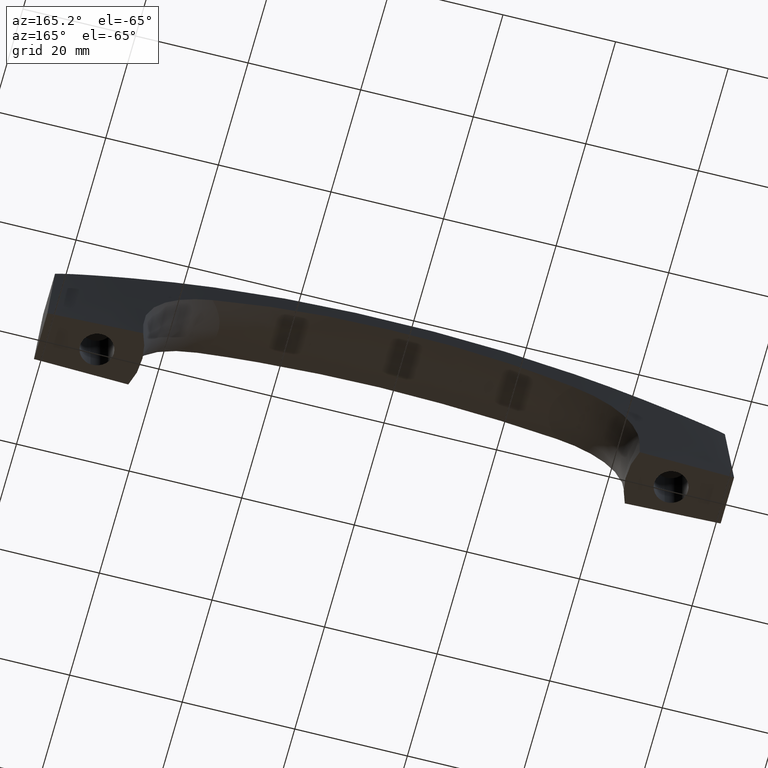
[diagram: clean part render]
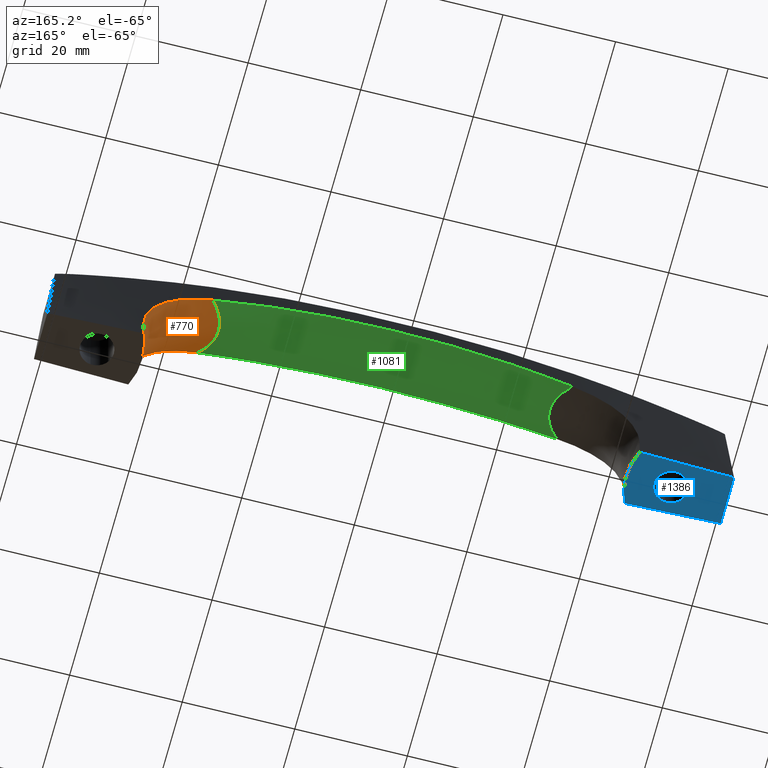
[diagram: same view with three faces highlighted in distinct colors, each labeled with its STEP entity id]
A machine part, auxiliary view with three faces highlighted in distinct colors.
Their STEP definitions:

[orange] entity #770 — the highlighted face is a freeform B-spline surface patch.
#523=CARTESIAN_POINT('',(44.082250863787102,4.979584519048630,3.605350041675625));
#524=VERTEX_POINT('',#523);
#549=CARTESIAN_POINT('',(44.082879863556499,-4.979579647296540,3.603921780029675));
#550=VERTEX_POINT('',#549);
#558=CARTESIAN_POINT('',(44.082250863787102,4.979584519048630,3.605350041675625));
#559=CARTESIAN_POINT('',(44.061805541953468,4.934754980369749,3.572103161481472));
#560=CARTESIAN_POINT('',(44.041557719643492,4.889628672710915,3.539211358963760));
#561=CARTESIAN_POINT('',(43.814513336354047,4.375093358441645,3.170753038720376));
#562=CARTESIAN_POINT('',(43.628145494150367,3.869373818832388,2.871423095946262));
#563=CARTESIAN_POINT('',(43.172047555760876,2.298523049232081,2.148393828792288));
#564=CARTESIAN_POINT('',(43.003163163210182,1.175548169044361,1.894745840074199));
#565=CARTESIAN_POINT('',(42.998749687705697,-0.541893558222515,1.886695942256058));
#566=CARTESIAN_POINT('',(43.039393928722063,-1.122935938427230,1.947433257691355));
#567=CARTESIAN_POINT('',(43.198337025025189,-2.244635786605662,2.192246502187220));
#568=CARTESIAN_POINT('',(43.316006466822273,-2.788608503984232,2.375161768322997));
#569=CARTESIAN_POINT('',(43.633858211869757,-3.896059069223268,2.877745528504867));
#570=CARTESIAN_POINT('',(43.844006431972772,-4.455527119921518,3.214909279984090));
#571=CARTESIAN_POINT('',(44.082879863556499,-4.979579647296540,3.603921780029675));
#572=B_SPLINE_CURVE_WITH_KNOTS('',3,(#558,#559,#560,#561,#562,#563,#564,#565,#566,#567,#568,#569,#570,#571),.UNSPECIFIED.,.F.,.U.,(4,2,2,2,2,2,4),(0.007838878932541,0.007965946512911,0.009278175349758,0.011902633023452,0.013214861860299,0.014527090697146,0.015998461930642),.UNSPECIFIED.);
#573=EDGE_CURVE('',#524,#550,#572,.T.);
#578=CARTESIAN_POINT('',(45.080294106020588,6.752444310311134,5.134577590753950));
#579=CARTESIAN_POINT('',(45.070049700699457,6.737325087688528,5.177985632299731));
#580=CARTESIAN_POINT('',(42.689084896246413,3.223374223128531,15.266713665880658));
#581=CARTESIAN_POINT('',(33.648056535514471,6.737355394336897,20.341077216990222));
#582=CARTESIAN_POINT('',(33.609078922992460,6.752504843164640,20.362953774434754));
#583=CARTESIAN_POINT('',(44.956754143887970,6.570901175632478,4.926810901028103));
#584=CARTESIAN_POINT('',(44.946885867718812,6.555743561799802,4.970847555976422));
#585=CARTESIAN_POINT('',(42.642876779094841,3.016799228091930,15.252364965321513));
#586=CARTESIAN_POINT('',(33.385628095525313,6.555773946000112,20.288232555321287));
#587=CARTESIAN_POINT('',(33.345899553369676,6.570961861013964,20.309844557405079));
#588=CARTESIAN_POINT('',(44.836221595036456,6.383056194430378,4.725426405553452));
#589=CARTESIAN_POINT('',(44.826757819236590,6.367909003125281,4.770088495405320));
#590=CARTESIAN_POINT('',(42.607010864946311,2.815105927853508,15.245668223530979));
#591=CARTESIAN_POINT('',(33.130693077362082,6.367939367046693,20.235677428537226));
#592=CARTESIAN_POINT('',(33.090210873471008,6.383116836914239,20.256994418383204));
#593=CARTESIAN_POINT('',(44.473508681901670,5.780533417708178,4.123917735728925));
#594=CARTESIAN_POINT('',(44.465366685290313,5.765571454258140,4.170477266344490));
#595=CARTESIAN_POINT('',(42.527998415200628,2.205408679699893,15.249204216316175));
#596=CARTESIAN_POINT('',(32.367555061608627,5.765601448827734,20.074476401256028));
#597=CARTESIAN_POINT('',(32.324769735610658,5.780593315121526,20.094795479496696));
#598=CARTESIAN_POINT('',(44.242837747070247,5.342552049505785,3.746801991625277));
#599=CARTESIAN_POINT('',(44.235692968658356,5.327978716259035,3.794614292987360));
#600=CARTESIAN_POINT('',(42.518800412177349,1.826002037360240,15.283925729117994));
#601=CARTESIAN_POINT('',(31.886911911010984,5.328007932744717,19.967979304592518));
#602=CARTESIAN_POINT('',(31.842579695030686,5.342610388526801,19.987510592448686));
#603=CARTESIAN_POINT('',(43.824778134463294,4.401508337474752,3.070260974938749));
#604=CARTESIAN_POINT('',(43.819670443707913,4.388343948089008,3.120408129333154));
#605=CARTESIAN_POINT('',(42.568806032029570,1.164408323794642,15.401357345572350));
#606=CARTESIAN_POINT('',(31.022045628286513,4.388370342157891,19.769921529466373));
#607=CARTESIAN_POINT('',(30.974802596749186,4.401561032358701,19.787795306031949));
#608=CARTESIAN_POINT('',(43.636322024748488,3.893730465923430,2.768730211596710));
#609=CARTESIAN_POINT('',(43.632262223080851,3.881593175302522,2.819974522333848));
#610=CARTESIAN_POINT('',(42.628879115708841,0.881852455116946,15.485045368642902));
#611=CARTESIAN_POINT('',(30.635186014975332,3.881617510828556,19.677946335019293));
#612=CARTESIAN_POINT('',(30.586561627317643,3.893779047540044,19.694945039278853));
#613=CARTESIAN_POINT('',(43.174776266542054,2.314923449765486,2.040305799656462));
#614=CARTESIAN_POINT('',(43.173452052125739,2.306756390450942,2.094238962909838));
#615=CARTESIAN_POINT('',(42.838387876049914,0.240256459308241,15.740874043779161));
#616=CARTESIAN_POINT('',(29.698035550179835,2.306772767291519,19.447584968716328));
#617=CARTESIAN_POINT('',(29.645999977010302,2.314956136951894,19.462263481344436));
#618=CARTESIAN_POINT('',(43.003303239706170,1.184000520232820,1.784444589659977));
#619=CARTESIAN_POINT('',(43.003282080533815,1.179800046202783,1.839480281311706));
#620=CARTESIAN_POINT('',(42.997875471037446,0.106491392967733,15.902246451079192));
#621=CARTESIAN_POINT('',(29.365455047997749,1.179808469375395,19.355020329536394));
#622=CARTESIAN_POINT('',(29.311997430904686,1.184017331155586,19.368559896111922));
#623=CARTESIAN_POINT('',(42.998857831707944,-0.545737254486875,1.776325831967125));
#624=CARTESIAN_POINT('',(42.998867989871442,-0.543801638653960,1.831394573308226));
#625=CARTESIAN_POINT('',(43.001464272081328,-0.049085743046121,15.906182157336332));
#626=CARTESIAN_POINT('',(29.355155252572978,-0.543805520130713,19.353066703407727));
#627=CARTESIAN_POINT('',(29.301656771416326,-0.545745001102040,19.366579741085072));
#628=CARTESIAN_POINT('',(43.040110239124317,-1.130955790101828,1.837569237739479));
#629=CARTESIAN_POINT('',(43.039821830840530,-1.126936107395765,1.892385262209954));
#630=CARTESIAN_POINT('',(42.966279867934993,-0.101946975389102,15.870062967292180));
#631=CARTESIAN_POINT('',(29.434752030968195,-1.126944167985624,19.375290237335726));
#632=CARTESIAN_POINT('',(29.381580114530166,-1.130971877622747,19.389063970335023));
#633=CARTESIAN_POINT('',(43.201257074791741,-2.260089782233837,2.084338172562199));
#634=CARTESIAN_POINT('',(43.199877936318551,-2.252360209182155,2.138178393424138));
#635=CARTESIAN_POINT('',(42.851289299630672,-0.298646797091987,15.746738776321921));
#636=CARTESIAN_POINT('',(29.753989077762053,-2.252375708546218,19.459285834881264));
#637=CARTESIAN_POINT('',(29.702068507203222,-2.260120718439987,19.474003185651405));
#638=CARTESIAN_POINT('',(43.320520579815948,-2.807360628640942,2.268710204733941));
#639=CARTESIAN_POINT('',(43.318350026800324,-2.797985148824797,2.321823714649160));
#640=CARTESIAN_POINT('',(42.773221675744814,-0.443359477031166,15.661133959879635));
#641=CARTESIAN_POINT('',(29.992151604044079,-2.798003948182839,19.520761034229242));
#642=CARTESIAN_POINT('',(29.941159619583761,-2.807398153332244,19.536159591837762));
#643=CARTESIAN_POINT('',(43.775570233507175,-4.381683786826828,2.984912825330219));
#644=CARTESIAN_POINT('',(43.770650913637951,-4.368256487250542,3.035318932286654));
#645=CARTESIAN_POINT('',(42.563313986358594,-1.072826419074647,15.406369383658740));
#646=CARTESIAN_POINT('',(30.913874078946890,-4.368283408456470,19.748568750961407));
#647=CARTESIAN_POINT('',(30.866313749517911,-4.381737533399789,19.766296335634710));
#648=CARTESIAN_POINT('',(44.213901248004319,-5.346108190979845,3.691308788807143));
#649=CARTESIAN_POINT('',(44.206695101421758,-5.331315996259572,3.739195170055001));
#650=CARTESIAN_POINT('',(42.473991597033809,-1.774562419882943,15.253379574999498));
#651=CARTESIAN_POINT('',(31.818899900070630,-5.331345651880263,19.959616362052348));
#652=CARTESIAN_POINT('',(31.774498219720194,-5.346167406270965,19.979228095805098));
#653=CARTESIAN_POINT('',(44.829211345203667,-6.372073191735798,4.713020382093528));
#654=CARTESIAN_POINT('',(44.819773912272694,-6.356952464648384,4.757721192328099));
#655=CARTESIAN_POINT('',(42.605608009084875,-2.809398951611429,15.245213987249617));
#656=CARTESIAN_POINT('',(33.115097725676456,-6.356982775552329,20.232840966485369));
#657=CARTESIAN_POINT('',(33.074565837209740,-6.372133728197066,20.254142027692733));
#658=CARTESIAN_POINT('',(44.952890932220001,-6.565168085959815,4.919918281183925));
#659=CARTESIAN_POINT('',(44.943036993646771,-6.550029312336834,4.963976080527908));
#660=CARTESIAN_POINT('',(42.642042258883784,-3.014971919959586,15.251919684257906));
#661=CARTESIAN_POINT('',(33.376980753826686,-6.550059658787335,20.286702680436647));
#662=CARTESIAN_POINT('',(33.337224438864418,-6.565228695872246,20.308306899518598));
#663=CARTESIAN_POINT('',(45.079608601337156,-6.751437873785444,5.133274941342227));
#664=CARTESIAN_POINT('',(45.069368506821114,-6.736333826332615,5.176687157947462));
#665=CARTESIAN_POINT('',(42.689342294090750,-3.225816535722429,15.266653936213762));
#666=CARTESIAN_POINT('',(33.646430143316408,-6.736364102564008,20.340828803993695));
#667=CARTESIAN_POINT('',(33.607445446453376,-6.751498345873545,20.362703966082222));
#675=(BOUNDED_SURFACE()B_SPLINE_SURFACE(2,3,((#578,#583,#588,#593,#598,#603,#608,#613,#618,#623,#628,#633,#638,#643,#648,#653,#658,#663),(#579,#584,#589,#594,#599,#604,#609,#614,#619,#624,#629,#634,#639,#644,#649,#654,#659,#664),(#580,#585,#590,#595,#600,#605,#610,#615,#620,#625,#630,#635,#640,#645,#650,#655,#660,#665),(#581,#586,#591,#596,#601,#606,#611,#616,#621,#626,#631,#636,#641,#646,#651,#656,#661,#666),(#582,#587,#592,#597,#602,#607,#612,#617,#622,#627,#632,#637,#642,#647,#652,#657,#662,#667)),.UNSPECIFIED.,.F.,.F.,.U.)B_SPLINE_SURFACE_WITH_KNOTS((3,1,1,3),(4,2,2,2,2,2,2,2,4),(0.0,0.123362028490618,24.823048897400160,24.946658043230858),(0.0,0.976460286446232,3.027858903366601,5.079257520286970,9.182054754127709,11.233453371048080,13.284851987968450,17.387649221809170,18.381773931342121),.UNSPECIFIED.)GEOMETRIC_REPRESENTATION_ITEM()RATIONAL_B_SPLINE_SURFACE(((1.001329225078286,1.001368214203108,1.001407410601209,1.001528847603208,1.001610992594413,1.001767006329892,1.001841337008536,1.002029115071149,1.002106144662457,1.002108132125392,1.002089940801202,1.002020667296859,1.001969958792039,1.001784596914728,1.001616095345756,1.001409707533222,1.001369451653613,1.001329453452548),(1.000664612539143,1.000684107101554,1.000703705300604,1.000764423801604,1.000805496297206,1.000883503164946,1.000920668504268,1.001014557535574,1.001053072331229,1.001054066062696,1.001044970400601,1.001010333648429,1.000984979396020,1.000892298457364,1.000808047672878,1.000704853766611,1.000684725826807,1.000664726726274),(0.866930514949930,0.863027291299277,0.859103317401757,0.846946189473549,0.838722607284495,0.823103982733893,0.815662695857696,0.796864126297302,0.789152649726133,0.788953683671702,0.790774827571123,0.797709837827252,0.802786295331886,0.821342979195785,0.838211767920503,0.858873370220389,0.862903409419350,0.866907652271515),(1.000665943883033,1.000685477496718,1.000705114954646,1.000765955086221,1.000807109857755,1.000885272987920,1.000922512776405,1.001016589885096,1.001055181833128,1.001056177555226,1.001047063672810,1.001012357536711,1.000986952494965,1.000894085898962,1.000809666344312,1.000706265721246,1.000686097461394,1.000666058298902),(1.001331887766065,1.001370954993436,1.001410229909293,1.001531910172442,1.001614219715511,1.001770545975839,1.001845025552810,1.002033179770191,1.002110363666256,1.002112355110452,1.002094127345620,1.002024715073421,1.001973904989931,1.001788171797924,1.001619332688625,1.001412531442492,1.001372194922787,1.001332116597804)))REPRESENTATION_ITEM('')SURFACE());
#676=ORIENTED_EDGE('',*,*,#573,.T.);
#677=CARTESIAN_POINT('',(31.802017009434401,-5.160834543177030,19.919319875869650));
#678=VERTEX_POINT('',#677);
#679=CARTESIAN_POINT('',(31.802017009434401,-5.160834543177030,19.919319875869650));
#680=CARTESIAN_POINT('',(32.691539851712342,-5.141563303627655,19.667296589518589));
#681=CARTESIAN_POINT('',(33.552061479474489,-5.122936460799529,19.354723559195481));
#682=CARTESIAN_POINT('',(34.798723480071423,-5.095994306989473,18.793657488653700));
#683=CARTESIAN_POINT('',(35.206902775466972,-5.087185454150149,18.591178249858700));
#684=CARTESIAN_POINT('',(36.007864644051317,-5.069965167658074,18.154071476555000));
#685=CARTESIAN_POINT('',(36.400650359213117,-5.061554005675075,17.919450486631892));
#686=CARTESIAN_POINT('',(36.977540532800788,-5.049285566978782,17.541859475034080));
#687=CARTESIAN_POINT('',(37.167785739487613,-5.045254220951280,17.411712010661631));
#688=CARTESIAN_POINT('',(37.449951509929782,-5.039301229410651,17.209804457082321));
#689=CARTESIAN_POINT('',(37.543429090555279,-5.037333512795889,17.141413454365338));
#690=CARTESIAN_POINT('',(37.728319000058178,-5.033450985088471,17.003106248660451));
#691=CARTESIAN_POINT('',(37.819853848824792,-5.031533586167400,16.933103315160551));
#692=CARTESIAN_POINT('',(38.272982866651319,-5.022066877914060,16.578846924034870));
#693=CARTESIAN_POINT('',(38.620954954208557,-5.014878282334703,16.281880980233989));
#694=CARTESIAN_POINT('',(39.621128440782812,-4.994506073388788,15.350160590472640));
#695=CARTESIAN_POINT('',(40.229639616246239,-4.982422400602411,14.674634315657340));
#696=CARTESIAN_POINT('',(41.052263548453837,-4.967291659650552,13.577210124065820));
#697=CARTESIAN_POINT('',(41.311434995790812,-4.962773213474763,13.197367252574949));
#698=CARTESIAN_POINT('',(41.798938612787673,-4.954981217493461,12.408893653299209));
#699=CARTESIAN_POINT('',(42.023339237843039,-4.951770835192053,12.006642455043311));
#700=CARTESIAN_POINT('',(42.641939488034012,-4.944249474085741,10.777314663303921));
#701=CARTESIAN_POINT('',(42.981864554477333,-4.942049734815915,9.927780685954243));
#702=CARTESIAN_POINT('',(43.323172687693187,-4.942869811698580,8.831278665279188));
#703=CARTESIAN_POINT('',(43.387228154627593,-4.943212156062575,8.610238177892938));
#704=CARTESIAN_POINT('',(43.506990655257830,-4.944254888572649,8.164703454420714));
#705=CARTESIAN_POINT('',(43.562779484670848,-4.944957046415500,7.939820224847321));
#706=CARTESIAN_POINT('',(43.716808943542482,-4.947586659932695,7.263875905623732));
#707=CARTESIAN_POINT('',(43.801924278721458,-4.950034885818505,6.811122657174763));
#708=CARTESIAN_POINT('',(44.007083324495383,-4.959369581489566,5.446839329922986));
#709=CARTESIAN_POINT('',(44.077307010174707,-4.968241734188141,4.529287907441254));
#710=CARTESIAN_POINT('',(44.082879863556499,-4.979579647296540,3.603921780029675));
#711=B_SPLINE_CURVE_WITH_KNOTS('',3,(#679,#680,#681,#682,#683,#684,#685,#686,#687,#688,#689,#690,#691,#692,#693,#694,#695,#696,#697,#698,#699,#700,#701,#702,#703,#704,#705,#706,#707,#708,#709,#710),.UNSPECIFIED.,.F.,.U.,(4,2,2,2,2,2,2,2,2,2,2,2,2,2,2,4),(0.000010611798683,0.124999999999999,0.187499999999999,0.250000000000000,0.281250000000000,0.296874999999999,0.312499999999999,0.374999999999999,0.500000000000000,0.562500000000000,0.625000000000000,0.750000000000000,0.781250000000000,0.812500000000000,0.875000000000000,0.999994305615757),.UNSPECIFIED.);
#712=EDGE_CURVE('',#678,#550,#711,.T.);
#713=ORIENTED_EDGE('',*,*,#712,.F.);
#714=CARTESIAN_POINT('',(31.803280635618300,5.160807104095160,19.918591792573899));
#715=VERTEX_POINT('',#714);
#716=CARTESIAN_POINT('',(31.802017009434401,-5.160834543177030,19.919319875869650));
#717=CARTESIAN_POINT('',(31.544508817987669,-4.901500882649113,19.861307578703041));
#718=CARTESIAN_POINT('',(30.923088351541612,-4.210686773737158,19.717622094367272));
#719=CARTESIAN_POINT('',(30.116905773373659,-2.999274076952050,19.520848045497718));
#720=CARTESIAN_POINT('',(29.541290944065729,-1.514774810855222,19.374282202826080));
#721=CARTESIAN_POINT('',(29.348528958815368,0.000610195379206,19.324010073250960));
#722=CARTESIAN_POINT('',(29.543432987319640,1.515914695845538,19.373757568973758));
#723=CARTESIAN_POINT('',(30.119720263575331,3.000685804611912,19.520282631177651));
#724=CARTESIAN_POINT('',(30.925697905249940,4.211627782066718,19.717024599959149));
#725=CARTESIAN_POINT('',(31.546325443138080,4.901908171230543,19.860666952074670));
#726=CARTESIAN_POINT('',(31.803280635618300,5.160807104095160,19.918591792573899));
#727=B_SPLINE_CURVE_WITH_KNOTS('',3,(#716,#717,#718,#719,#720,#721,#722,#723,#724,#725,#726),.UNSPECIFIED.,.F.,.U.,(4,1,1,1,1,1,1,1,4),(0.293232866177284,0.332352932474829,0.392498532906652,0.447638232598638,0.500046093444396,0.552502353411976,0.607667971942981,0.667804671063672,0.706851880898741),.UNSPECIFIED.);
#728=EDGE_CURVE('',#678,#715,#727,.T.);
#729=ORIENTED_EDGE('',*,*,#728,.T.);
#730=CARTESIAN_POINT('',(44.082250863787102,4.979584519048630,3.605350041675625));
#731=CARTESIAN_POINT('',(44.076956136583561,4.968247000714896,4.529910529425358));
#732=CARTESIAN_POINT('',(44.007331977542329,4.959408988374667,5.443002201723352));
#733=CARTESIAN_POINT('',(43.805695970149387,4.950091536803920,6.795337720618992));
#734=CARTESIAN_POINT('',(43.722183507703640,4.947643733685406,7.243227677287054));
#735=CARTESIAN_POINT('',(43.521267447603897,4.944113636639386,8.132965673360268));
#736=CARTESIAN_POINT('',(43.403866522215147,4.943031418885463,8.574814190222469));
#737=CARTESIAN_POINT('',(43.200749320316717,4.942477044523661,9.232770628349948));
#738=CARTESIAN_POINT('',(43.128529038276092,4.942470682526870,9.451284593309547));
#739=CARTESIAN_POINT('',(42.974767407126023,4.942820614412618,9.886650742394291));
#740=CARTESIAN_POINT('',(42.893084267872560,4.943178760885633,10.103777831251341));
#741=CARTESIAN_POINT('',(42.636188150191089,4.944788833756206,10.745972959732610));
#742=CARTESIAN_POINT('',(42.448462725798088,4.946576347671961,11.163950007605660));
#743=CARTESIAN_POINT('',(41.835562028518652,4.953972551166575,12.387213269093181));
#744=CARTESIAN_POINT('',(41.360813408169079,4.961633142751754,13.161924545840810));
#745=CARTESIAN_POINT('',(40.544753458475491,4.976577922340746,14.259895167905119));
#746=CARTESIAN_POINT('',(40.255371310471062,4.982131506709964,14.615178453878240));
#747=CARTESIAN_POINT('',(39.794292721161341,4.991183619009651,15.131451276980240));
#748=CARTESIAN_POINT('',(39.635675085390488,4.994330353737659,15.301172847173531));
#749=CARTESIAN_POINT('',(39.312524354333647,5.000800832937718,15.631709399011600));
#750=CARTESIAN_POINT('',(39.147779348805628,5.004128581592381,15.792803621766231));
#751=CARTESIAN_POINT('',(38.308651043559713,5.021209609160410,16.577990581863450));
#752=CARTESIAN_POINT('',(37.588301452235427,5.036286511420092,17.141551467323129));
#753=CARTESIAN_POINT('',(36.439913698738323,5.060700697399872,17.897529512785820));
#754=CARTESIAN_POINT('',(36.045748018006613,5.069139392548497,18.134550376915520));
#755=CARTESIAN_POINT('',(35.538968321746509,5.080034969289716,18.412296207743630));
#756=CARTESIAN_POINT('',(35.436826900560263,5.082233187308512,18.466960019591252));
#757=CARTESIAN_POINT('',(35.231791287770228,5.086649511664565,18.574099401353418));
#758=CARTESIAN_POINT('',(34.922958118756682,5.093307073594882,18.731614163364220));
#759=CARTESIAN_POINT('',(34.610346522083297,5.100059236389988,18.879697972079612));
#760=CARTESIAN_POINT('',(33.980217505368437,5.113679345061160,19.163621037168241));
#761=CARTESIAN_POINT('',(33.553599979911318,5.122912600558392,19.336600982693142));
#762=CARTESIAN_POINT('',(32.687820854089523,5.141652261266620,19.651090195621510));
#763=CARTESIAN_POINT('',(32.248660416214271,5.151158047474998,19.792602396418790));
#764=CARTESIAN_POINT('',(31.803280635618300,5.160807104095160,19.918591792573899));
#765=B_SPLINE_CURVE_WITH_KNOTS('',3,(#730,#731,#732,#733,#734,#735,#736,#737,#738,#739,#740,#741,#742,#743,#744,#745,#746,#747,#748,#749,#750,#751,#752,#753,#754,#755,#756,#757,#758,#759,#760,#761,#762,#763,#764),.UNSPECIFIED.,.F.,.U.,(4,2,2,2,2,2,2,2,2,2,2,2,2,2,1,2,2,4),(0.000007047558433,0.125000000000000,0.187500000000000,0.250000000000000,0.281250000000000,0.312500000000000,0.375000000000000,0.500000000000000,0.562499999999999,0.593749999999999,0.624999999999999,0.750000000000000,0.812500000000000,0.828125000000000,0.843750000000000,0.875000000000000,0.937500000000000,0.999991775250529),.UNSPECIFIED.);
#766=EDGE_CURVE('',#524,#715,#765,.T.);
#767=ORIENTED_EDGE('',*,*,#766,.F.);
#768=EDGE_LOOP('',(#676,#713,#729,#767));
#769=FACE_OUTER_BOUND('',#768,.T.);
#770=ADVANCED_FACE('',(#769),#675,.F.);

[blue] entity #1386 — the highlighted face is a freeform B-spline surface patch.
#85=CARTESIAN_POINT('',(-50.645897295968823,-2.979028579083759,2.839428E-017));
#86=VERTEX_POINT('',#85);
#92=CARTESIAN_POINT('',(-54.0,0.0,0.0));
#93=VERTEX_POINT('',#92);
#94=CARTESIAN_POINT('',(-50.645897295968823,-2.979028579083760,2.839428E-017));
#95=CARTESIAN_POINT('',(-50.822327640982721,-3.000000000000000,0.0));
#96=CARTESIAN_POINT('',(-51.0,-3.0,0.0));
#97=CARTESIAN_POINT('',(-54.0,-3.0,0.0));
#98=CARTESIAN_POINT('',(-54.0,0.0,0.0));
#106=(BOUNDED_CURVE()B_SPLINE_CURVE(2,(#94,#95,#96,#97,#98),.UNSPECIFIED.,.F.,.U.)B_SPLINE_CURVE_WITH_KNOTS((3,2,3),(0.229562473508734,0.250000000000000,0.500000000000000),.UNSPECIFIED.)CURVE()GEOMETRIC_REPRESENTATION_ITEM()RATIONAL_B_SPLINE_CURVE((0.956026754174341,0.976055948325551,1.0,0.707106781186548,1.0))REPRESENTATION_ITEM(''));
#107=EDGE_CURVE('',#86,#93,#106,.T.);
#109=CARTESIAN_POINT('',(-51.183145619048112,2.994404395238473,2.775558E-017));
#110=VERTEX_POINT('',#109);
#111=CARTESIAN_POINT('',(-54.0,0.0,0.0));
#112=CARTESIAN_POINT('',(-54.0,2.822118199879488,0.0));
#113=CARTESIAN_POINT('',(-51.183145619048112,2.994404395238473,2.775558E-017));
#121=(BOUNDED_CURVE()B_SPLINE_CURVE(2,(#111,#112,#113),.UNSPECIFIED.,.F.,.U.)B_SPLINE_CURVE_WITH_KNOTS((3,3),(0.500000000000000,0.739332962190852),.UNSPECIFIED.)CURVE()GEOMETRIC_REPRESENTATION_ITEM()RATIONAL_B_SPLINE_CURVE((1.0,0.719603993343052,0.976072041563651))REPRESENTATION_ITEM(''));
#122=EDGE_CURVE('',#93,#110,#121,.T.);
#196=CARTESIAN_POINT('',(-47.999999999999993,0.0,0.0));
#197=VERTEX_POINT('',#196);
#198=CARTESIAN_POINT('',(-51.183145619048112,2.994404395238473,2.775558E-017));
#199=CARTESIAN_POINT('',(-51.091658290340547,3.0,0.0));
#200=CARTESIAN_POINT('',(-51.0,3.0,0.0));
#201=CARTESIAN_POINT('',(-47.999999999999993,3.0,0.0));
#202=CARTESIAN_POINT('',(-47.999999999999993,0.0,0.0));
#210=(BOUNDED_CURVE()B_SPLINE_CURVE(2,(#198,#199,#200,#201,#202),.UNSPECIFIED.,.F.,.U.)B_SPLINE_CURVE_WITH_KNOTS((3,2,3),(0.739332962190852,0.750000000000000,1.0),.UNSPECIFIED.)CURVE()GEOMETRIC_REPRESENTATION_ITEM()RATIONAL_B_SPLINE_CURVE((0.976072041563650,0.987502787843495,1.0,0.707106781186548,1.0))REPRESENTATION_ITEM(''));
#211=EDGE_CURVE('',#110,#197,#210,.T.);
#213=CARTESIAN_POINT('',(-47.999999999999993,0.0,0.0));
#214=CARTESIAN_POINT('',(-48.0,-2.664523577744385,0.0));
#215=CARTESIAN_POINT('',(-50.645897295968823,-2.979028579083760,2.839428E-017));
#223=(BOUNDED_CURVE()B_SPLINE_CURVE(2,(#213,#214,#215),.UNSPECIFIED.,.F.,.U.)B_SPLINE_CURVE_WITH_KNOTS((3,3),(0.0,0.229562473508734),.UNSPECIFIED.)CURVE()GEOMETRIC_REPRESENTATION_ITEM()RATIONAL_B_SPLINE_CURVE((1.0,0.731050832860996,0.956026754174341))REPRESENTATION_ITEM(''));
#224=EDGE_CURVE('',#197,#86,#223,.T.);
#454=CARTESIAN_POINT('',(-44.102122300624352,5.023570607590810,0.0));
#455=VERTEX_POINT('',#454);
#484=CARTESIAN_POINT('',(-44.102122300624352,-5.023570607590821,4.665728E-014));
#485=VERTEX_POINT('',#484);
#493=CARTESIAN_POINT('',(-44.102122300624323,5.023570607590820,0.0));
#494=CARTESIAN_POINT('',(-41.786418055668811,-3.469447E-015,0.0));
#495=CARTESIAN_POINT('',(-44.102122300624330,-5.023570607590825,0.0));
#503=(BOUNDED_CURVE()B_SPLINE_CURVE(2,(#493,#494,#495),.UNSPECIFIED.,.F.,.U.)CURVE()GEOMETRIC_REPRESENTATION_ITEM()QUASI_UNIFORM_CURVE()RATIONAL_B_SPLINE_CURVE((1.0,0.908156474947973,1.0))REPRESENTATION_ITEM(''));
#504=EDGE_CURVE('',#455,#485,#503,.T.);
#1305=CARTESIAN_POINT('',(-61.0,4.500000000000119,-4.440892E-013));
#1306=VERTEX_POINT('',#1305);
#1312=CARTESIAN_POINT('',(-61.0,-4.500000000000000,-6.661338E-013));
#1313=VERTEX_POINT('',#1312);
#1314=CARTESIAN_POINT('',(-61.0,-4.500000000000000,-6.661338E-013));
#1315=CARTESIAN_POINT('',(-61.0,4.500000000000119,-4.440892E-013));
#1316=QUASI_UNIFORM_CURVE('',1,(#1314,#1315),.UNSPECIFIED.,.F.,.U.);
#1317=EDGE_CURVE('',#1313,#1306,#1316,.T.);
#1355=CARTESIAN_POINT('',(-61.899099965112512,-5.525425291815834,-3.367663E-016));
#1356=CARTESIAN_POINT('',(-61.899099965112512,5.525425561301152,-3.367663E-016));
#1357=CARTESIAN_POINT('',(-42.100899552089878,-5.525425291815834,-3.367663E-016));
#1358=CARTESIAN_POINT('',(-42.100899552089878,5.525425561301152,-3.367663E-016));
#1359=B_SPLINE_SURFACE_WITH_KNOTS('',1,1,((#1355,#1357),(#1356,#1358)),.UNSPECIFIED.,.F.,.F.,.U.,(2,2),(2,2),(0.0,11.050850853116989),(0.0,19.798200413022631),.UNSPECIFIED.);
#1360=ORIENTED_EDGE('',*,*,#504,.T.);
#1361=CARTESIAN_POINT('',(-44.102122300624352,-5.023570607590821,4.665728E-014));
#1362=CARTESIAN_POINT('',(-46.087651374635378,-4.953796615689091,7.560548E-014));
#1363=CARTESIAN_POINT('',(-51.905629093042073,-4.706474693264565,9.239516E-014));
#1364=CARTESIAN_POINT('',(-57.382825673485499,-4.582122773217910,-7.656255E-013));
#1365=CARTESIAN_POINT('',(-61.0,-4.500000000000000,-6.661338E-013));
#1366=B_SPLINE_CURVE_WITH_KNOTS('',3,(#1361,#1362,#1363,#1364,#1365),.UNSPECIFIED.,.F.,.U.,(4,1,4),(0.858626061438684,0.906635781007391,1.0),.UNSPECIFIED.);
#1367=EDGE_CURVE('',#485,#1313,#1366,.T.);
#1368=ORIENTED_EDGE('',*,*,#1367,.T.);
#1369=ORIENTED_EDGE('',*,*,#1317,.T.);
#1370=CARTESIAN_POINT('',(-44.102122300624352,5.023570607590810,0.0));
#1371=CARTESIAN_POINT('',(-46.087651374635378,4.953796615689088,7.191676E-014));
#1372=CARTESIAN_POINT('',(-51.905629093042073,4.706474693264564,1.174712E-013));
#1373=CARTESIAN_POINT('',(-57.382825673485499,4.582122773217950,-4.881936E-013));
#1374=CARTESIAN_POINT('',(-61.0,4.500000000000119,-4.440892E-013));
#1375=B_SPLINE_CURVE_WITH_KNOTS('',3,(#1370,#1371,#1372,#1373,#1374),.UNSPECIFIED.,.F.,.U.,(4,1,4),(0.858626061438684,0.906635781007391,1.0),.UNSPECIFIED.);
#1376=EDGE_CURVE('',#455,#1306,#1375,.T.);
#1377=ORIENTED_EDGE('',*,*,#1376,.F.);
#1378=EDGE_LOOP('',(#1360,#1368,#1369,#1377));
#1379=FACE_OUTER_BOUND('',#1378,.T.);
#1380=ORIENTED_EDGE('',*,*,#122,.F.);
#1381=ORIENTED_EDGE('',*,*,#107,.F.);
#1382=ORIENTED_EDGE('',*,*,#224,.F.);
#1383=ORIENTED_EDGE('',*,*,#211,.F.);
#1384=EDGE_LOOP('',(#1380,#1381,#1382,#1383));
#1385=FACE_BOUND('',#1384,.T.);
#1386=ADVANCED_FACE('',(#1379,#1385),#1359,.T.);

[green] entity #1081 — the highlighted face is a freeform B-spline surface patch.
#677=CARTESIAN_POINT('',(31.802017009434401,-5.160834543177030,19.919319875869650));
#678=VERTEX_POINT('',#677);
#714=CARTESIAN_POINT('',(31.803280635618300,5.160807104095160,19.918591792573899));
#715=VERTEX_POINT('',#714);
#716=CARTESIAN_POINT('',(31.802017009434401,-5.160834543177030,19.919319875869650));
#717=CARTESIAN_POINT('',(31.544508817987669,-4.901500882649113,19.861307578703041));
#718=CARTESIAN_POINT('',(30.923088351541612,-4.210686773737158,19.717622094367272));
#719=CARTESIAN_POINT('',(30.116905773373659,-2.999274076952050,19.520848045497718));
#720=CARTESIAN_POINT('',(29.541290944065729,-1.514774810855222,19.374282202826080));
#721=CARTESIAN_POINT('',(29.348528958815368,0.000610195379206,19.324010073250960));
#722=CARTESIAN_POINT('',(29.543432987319640,1.515914695845538,19.373757568973758));
#723=CARTESIAN_POINT('',(30.119720263575331,3.000685804611912,19.520282631177651));
#724=CARTESIAN_POINT('',(30.925697905249940,4.211627782066718,19.717024599959149));
#725=CARTESIAN_POINT('',(31.546325443138080,4.901908171230543,19.860666952074670));
#726=CARTESIAN_POINT('',(31.803280635618300,5.160807104095160,19.918591792573899));
#727=B_SPLINE_CURVE_WITH_KNOTS('',3,(#716,#717,#718,#719,#720,#721,#722,#723,#724,#725,#726),.UNSPECIFIED.,.F.,.U.,(4,1,1,1,1,1,1,1,4),(0.293232866177284,0.332352932474829,0.392498532906652,0.447638232598638,0.500046093444396,0.552502353411976,0.607667971942981,0.667804671063672,0.706851880898741),.UNSPECIFIED.);
#728=EDGE_CURVE('',#678,#715,#727,.T.);
#859=CARTESIAN_POINT('',(-32.102967794721252,5.154311179593861,19.833391371376951));
#860=VERTEX_POINT('',#859);
#861=CARTESIAN_POINT('',(-32.104064012662562,-5.154287948843100,19.832745392253351));
#862=VERTEX_POINT('',#861);
#863=CARTESIAN_POINT('',(-32.102967794721252,5.154311179593861,19.833391371376951));
#864=CARTESIAN_POINT('',(-31.948797914065359,5.012479320042736,19.805820391768830));
#865=CARTESIAN_POINT('',(-31.360987123035041,4.444866403172558,19.700288607543030));
#866=CARTESIAN_POINT('',(-30.436027799691178,3.346896824299333,19.532387222031769));
#867=CARTESIAN_POINT('',(-29.613771482323589,1.741661968851095,19.377687991736469));
#868=CARTESIAN_POINT('',(-29.315358745939381,0.000722287296509,19.322268735789660));
#869=CARTESIAN_POINT('',(-29.614017240884920,-1.739270787928059,19.377290472070701));
#870=CARTESIAN_POINT('',(-30.435559704755700,-3.343591294852289,19.531299817326289));
#871=CARTESIAN_POINT('',(-31.360420740518869,-4.442825770947892,19.699262514551069));
#872=CARTESIAN_POINT('',(-31.949162361995690,-5.011731206885458,19.805030574926871));
#873=CARTESIAN_POINT('',(-32.104064012662562,-5.154287948843100,19.832745392253351));
#874=B_SPLINE_CURVE_WITH_KNOTS('',3,(#863,#864,#865,#866,#867,#868,#869,#870,#871,#872,#873),.UNSPECIFIED.,.F.,.U.,(4,1,1,1,1,1,1,1,4),(0.310411250183889,0.330438622915568,0.388481245858989,0.446839455960733,0.500020828043439,0.553121355654567,0.611404044477657,0.669504496123651,0.689632289277308),.UNSPECIFIED.);
#875=EDGE_CURVE('',#860,#862,#874,.T.);
#961=CARTESIAN_POINT('',(34.991479799693963,-5.983921640103334,19.455476078536964));
#962=CARTESIAN_POINT('',(-0.163339808870348,-5.983921640103334,30.018466790444091));
#963=CARTESIAN_POINT('',(-35.290850920749449,-5.983921640103334,19.365013004213832));
#964=CARTESIAN_POINT('',(34.000864749812067,-0.000005715940712,16.158597918749305));
#965=CARTESIAN_POINT('',(-0.158711363306936,-0.000005715940713,26.422547192938069));
#966=CARTESIAN_POINT('',(-34.291752091479019,-0.000005715940713,16.070695881214327));
#967=CARTESIAN_POINT('',(34.991478377783224,5.983913050891546,19.455471346258300));
#968=CARTESIAN_POINT('',(-0.163339802226762,5.983913050891548,30.018461628926797));
#969=CARTESIAN_POINT('',(-35.290849486661244,5.983913050891546,19.365008275611235));
#977=(BOUNDED_SURFACE()B_SPLINE_SURFACE(2,2,((#961,#964,#967),(#962,#965,#968),(#963,#966,#969)),.UNSPECIFIED.,.F.,.F.,.U.)B_SPLINE_SURFACE_WITH_KNOTS((3,3),(3,3),(34.026917494010917,106.765856706428490),(2.940867399406433,15.762646699714660),.UNSPECIFIED.)GEOMETRIC_REPRESENTATION_ITEM()RATIONAL_B_SPLINE_SURFACE(((0.878783380322358,0.761727416187987,0.878783186482487),(0.841446434279561,0.729363837091741,0.841446248675382),(0.879117455082956,0.762016991423367,0.879117261169396)))REPRESENTATION_ITEM('')SURFACE());
#978=ORIENTED_EDGE('',*,*,#728,.F.);
#979=CARTESIAN_POINT('',(-32.104064012662562,-5.154287948843100,19.832745392253351));
#980=CARTESIAN_POINT('',(-31.455906681658330,-5.168341272719869,20.017790178064690));
#981=CARTESIAN_POINT('',(-30.806174278058261,-5.182374401030033,20.197459848592509));
#982=CARTESIAN_POINT('',(-29.503481521281561,-5.210845616278813,20.546283311777731));
#983=CARTESIAN_POINT('',(-28.850525258233532,-5.225312663392298,20.715448819957171));
#984=CARTESIAN_POINT('',(-27.541442339896118,-5.254122721196410,21.042966978998930));
#985=CARTESIAN_POINT('',(-26.885137477090669,-5.268465991916456,21.201357485574949));
#986=CARTESIAN_POINT('',(-25.570573362361710,-5.296502044259849,21.506766102497089));
#987=CARTESIAN_POINT('',(-24.912233560607081,-5.310196595236666,21.653807584307639));
#988=CARTESIAN_POINT('',(-22.933984569017589,-5.349756705571251,22.077690182591311));
#989=CARTESIAN_POINT('',(-21.610841215804211,-5.374046219307145,22.337269556679821));
#990=CARTESIAN_POINT('',(-18.955749398366500,-5.416893286289576,22.809562641774630));
#991=CARTESIAN_POINT('',(-17.623808960553440,-5.435528113719601,23.022312575885611));
#992=CARTESIAN_POINT('',(-15.619232306274990,-5.458926363941833,23.305976706853251));
#993=CARTESIAN_POINT('',(-14.949753185706140,-5.465963222870101,23.394636664710379));
#994=CARTESIAN_POINT('',(-13.610133762978229,-5.478384429766816,23.559844649126390));
#995=CARTESIAN_POINT('',(-12.939849142172021,-5.483770607724916,23.636416130217441));
#996=CARTESIAN_POINT('',(-10.927563763181251,-5.497268614926988,23.847954272517288));
#997=CARTESIAN_POINT('',(-9.584118443744860,-5.502414041464815,23.964590974590660));
#998=CARTESIAN_POINT('',(-6.893435558068437,-5.506179094508274,24.149691131536962));
#999=CARTESIAN_POINT('',(-5.546215136344048,-5.505190287359071,24.218356982086721));
#1000=CARTESIAN_POINT('',(-3.522712465238101,-5.502927237273293,24.287250287173880));
#1001=CARTESIAN_POINT('',(-2.847649400596666,-5.502044025323405,24.304529316864389));
#1002=CARTESIAN_POINT('',(-1.498098462595619,-5.500620042422374,24.327982365322161));
#1003=CARTESIAN_POINT('',(-0.823448496612311,-5.500079198447363,24.334163948647699));
#1004=CARTESIAN_POINT('',(2.549192115505067,-5.499723905409029,24.338160337276811));
#1005=CARTESIAN_POINT('',(5.245364868618548,-5.507608681366405,24.255673881047208));
#1006=CARTESIAN_POINT('',(8.612875682077734,-5.503931989643172,24.032994450631421));
#1007=CARTESIAN_POINT('',(9.286323247740269,-5.502520490718755,23.982463378262270));
#1008=CARTESIAN_POINT('',(10.631250071406139,-5.497773614711227,23.869261939382501));
#1009=CARTESIAN_POINT('',(11.302929918375529,-5.494432226868222,23.806577164342269));
#1010=CARTESIAN_POINT('',(13.315640330976050,-5.481722045079955,23.600423717370521));
#1011=CARTESIAN_POINT('',(14.654343235281081,-5.469679209812371,23.438866548064109));
#1012=CARTESIAN_POINT('',(17.325628542439450,-5.439425666335707,23.068124090055750));
#1013=CARTESIAN_POINT('',(18.658211582360419,-5.421223580247538,22.858943157455059));
#1014=CARTESIAN_POINT('',(20.652522425907652,-5.389682890040875,22.509630886838959));
#1015=CARTESIAN_POINT('',(21.316544801862289,-5.378451744150816,22.387255049357321));
#1016=CARTESIAN_POINT('',(22.641041180256771,-5.354721779466034,22.131107577540739));
#1017=CARTESIAN_POINT('',(23.301772128543419,-5.342218408457084,21.997292348356030));
#1018=CARTESIAN_POINT('',(25.279484047502098,-5.303146952249571,21.578863519218391));
#1019=CARTESIAN_POINT('',(26.591977726827110,-5.274956802050054,21.277247448973888));
#1020=CARTESIAN_POINT('',(28.552144906749000,-5.231919184926307,20.792146311808921));
#1021=CARTESIAN_POINT('',(29.204106696140219,-5.217463039330730,20.625004704018529));
#1022=CARTESIAN_POINT('',(30.505184054665779,-5.188916759128201,20.280131101550431));
#1023=CARTESIAN_POINT('',(31.154305497132700,-5.174867252474643,20.102418203935159));
#1024=CARTESIAN_POINT('',(31.802017009434401,-5.160834543177030,19.919319875869650));
#1025=B_SPLINE_CURVE_WITH_KNOTS('',3,(#979,#980,#981,#982,#983,#984,#985,#986,#987,#988,#989,#990,#991,#992,#993,#994,#995,#996,#997,#998,#999,#1000,#1001,#1002,#1003,#1004,#1005,#1006,#1007,#1008,#1009,#1010,#1011,#1012,#1013,#1014,#1015,#1016,#1017,#1018,#1019,#1020,#1021,#1022,#1023,#1024),.UNSPECIFIED.,.F.,.U.,(4,2,2,2,2,2,2,2,2,2,2,2,2,2,2,2,2,2,2,2,2,2,4),(0.000006961809216,0.031250000000000,0.062500000000000,0.093750000000000,0.125000000000000,0.187500000000000,0.250000000000000,0.281250000000000,0.312500000000001,0.375000000000000,0.437500000000000,0.468750000000000,0.500000000000000,0.625000000000000,0.656250000000000,0.687500000000000,0.750000000000000,0.812500000000000,0.843750000000000,0.875000000000000,0.937500000000000,0.968750000000000,0.999996374207115),.UNSPECIFIED.);
#1026=EDGE_CURVE('',#862,#678,#1025,.T.);
#1027=ORIENTED_EDGE('',*,*,#1026,.F.);
#1028=ORIENTED_EDGE('',*,*,#875,.F.);
#1029=CARTESIAN_POINT('',(31.803280635618300,5.160807104095160,19.918591792573899));
#1030=CARTESIAN_POINT('',(31.154681565221878,5.174859027118431,20.101955770686558));
#1031=CARTESIAN_POINT('',(30.504531339790610,5.188930627543876,20.279958268528809));
#1032=CARTESIAN_POINT('',(29.201015210098060,5.217530881628706,20.625471555720271));
#1033=CARTESIAN_POINT('',(28.547642380417109,5.232018568023445,20.792961609757779));
#1034=CARTESIAN_POINT('',(27.237747437311871,5.260776982787715,21.117076432513269));
#1035=CARTESIAN_POINT('',(26.581038088897898,5.275051315218908,21.273742482028869));
#1036=CARTESIAN_POINT('',(25.265626552853892,5.302883291444919,21.575676992525828));
#1037=CARTESIAN_POINT('',(24.606878677831240,5.316442074363981,21.720960522956169));
#1038=CARTESIAN_POINT('',(22.627456473892309,5.355524244573550,22.139520279369030));
#1039=CARTESIAN_POINT('',(21.303599289765831,5.379403381075972,22.395486715734791));
#1040=CARTESIAN_POINT('',(18.647234080709179,5.421378946132372,22.860490524626911));
#1041=CARTESIAN_POINT('',(17.314735593004670,5.439567721086537,23.069571907639201));
#1042=CARTESIAN_POINT('',(15.309438525818759,5.462250267141537,23.347685173043160));
#1043=CARTESIAN_POINT('',(14.639719700871421,5.469040823909142,23.434488976540809));
#1044=CARTESIAN_POINT('',(13.299599544235170,5.480950710550645,23.595977173331619));
#1045=CARTESIAN_POINT('',(11.958570415500789,5.491192866494729,23.745384710308532));
#1046=CARTESIAN_POINT('',(10.615714552014561,5.497842692761930,23.870523609129769));
#1047=CARTESIAN_POINT('',(9.271939864736689,5.502557047912999,23.983460779245210));
#1048=CARTESIAN_POINT('',(8.599593458894114,5.503955043911224,24.033832834889690));
#1049=CARTESIAN_POINT('',(6.581212475174895,5.506133639241793,24.167098670075411));
#1050=CARTESIAN_POINT('',(5.233836323089466,5.504894953854032,24.232144837106890));
#1051=CARTESIAN_POINT('',(3.210228687662226,5.502535026837919,24.295746477510900));
#1052=CARTESIAN_POINT('',(2.535128682374726,5.501665761683298,24.311284972035459));
#1053=CARTESIAN_POINT('',(1.185497364577371,5.500362356528542,24.331306343907801));
#1054=CARTESIAN_POINT('',(0.510824537838942,5.499931742028520,24.335797894177599));
#1055=CARTESIAN_POINT('',(-2.861845691656767,5.500320834254172,24.331444880265749));
#1056=CARTESIAN_POINT('',(-5.557754806758765,5.508082641363394,24.241912922039589));
#1057=CARTESIAN_POINT('',(-8.924535673351233,5.503327454431092,24.009969551196530));
#1058=CARTESIAN_POINT('',(-9.597853863817088,5.501649459109411,23.957557648166581));
#1059=CARTESIAN_POINT('',(-10.942497570745340,5.496305848299913,23.840565841832579));
#1060=CARTESIAN_POINT('',(-11.614015189647089,5.492677250211138,23.775994177500110));
#1061=CARTESIAN_POINT('',(-13.626177689743489,5.479138615682539,23.564206031416472));
#1062=CARTESIAN_POINT('',(-14.964433736380020,5.466587835578581,23.398927103653900));
#1063=CARTESIAN_POINT('',(-17.634663600166249,5.435382291393550,23.020803379605571));
#1064=CARTESIAN_POINT('',(-18.966637968431279,5.416734871984019,22.807962232061762));
#1065=CARTESIAN_POINT('',(-20.959913374528110,5.384541672160307,22.453193895761700));
#1066=CARTESIAN_POINT('',(-21.623624582263581,5.373099032267788,22.328997320628400));
#1067=CARTESIAN_POINT('',(-22.947476920675289,5.348974334893006,22.069231280327639));
#1068=CARTESIAN_POINT('',(-23.607869006426981,5.336287859442751,21.933618996358351));
#1069=CARTESIAN_POINT('',(-25.584518713247238,5.296737609255120,21.509848413214559));
#1070=CARTESIAN_POINT('',(-26.896243557139410,5.268323194185083,21.204737807407970));
#1071=CARTESIAN_POINT('',(-28.855186970677011,5.225209203053452,20.714543094898222));
#1072=CARTESIAN_POINT('',(-29.506729519506528,5.210773980219781,20.545729641515539));
#1073=CARTESIAN_POINT('',(-30.806984651328062,5.182356580739229,20.197550166484682));
#1074=CARTESIAN_POINT('',(-31.455692993998369,5.168345347077035,20.018170541384539));
#1075=CARTESIAN_POINT('',(-32.102967794721252,5.154311179593861,19.833391371376951));
#1076=B_SPLINE_CURVE_WITH_KNOTS('',3,(#1029,#1030,#1031,#1032,#1033,#1034,#1035,#1036,#1037,#1038,#1039,#1040,#1041,#1042,#1043,#1044,#1045,#1046,#1047,#1048,#1049,#1050,#1051,#1052,#1053,#1054,#1055,#1056,#1057,#1058,#1059,#1060,#1061,#1062,#1063,#1064,#1065,#1066,#1067,#1068,#1069,#1070,#1071,#1072,#1073,#1074,#1075),.UNSPECIFIED.,.F.,.U.,(4,2,2,2,2,2,2,2,1,2,2,2,2,2,2,2,2,2,2,2,2,2,2,4),(0.000008443473340,0.031250000000000,0.062500000000000,0.093750000000000,0.125000000000000,0.187499999999999,0.249999999999999,0.281249999999999,0.312499999999999,0.343749999999999,0.374999999999999,0.437499999999999,0.468749999999999,0.499999999999999,0.624999999999999,0.656249999999999,0.687499999999999,0.749999999999999,0.812500000000000,0.843750000000000,0.875000000000000,0.937500000000000,0.968750000000000,0.999998244953680),.UNSPECIFIED.);
#1077=EDGE_CURVE('',#715,#860,#1076,.T.);
#1078=ORIENTED_EDGE('',*,*,#1077,.F.);
#1079=EDGE_LOOP('',(#978,#1027,#1028,#1078));
#1080=FACE_OUTER_BOUND('',#1079,.T.);
#1081=ADVANCED_FACE('',(#1080),#977,.T.);